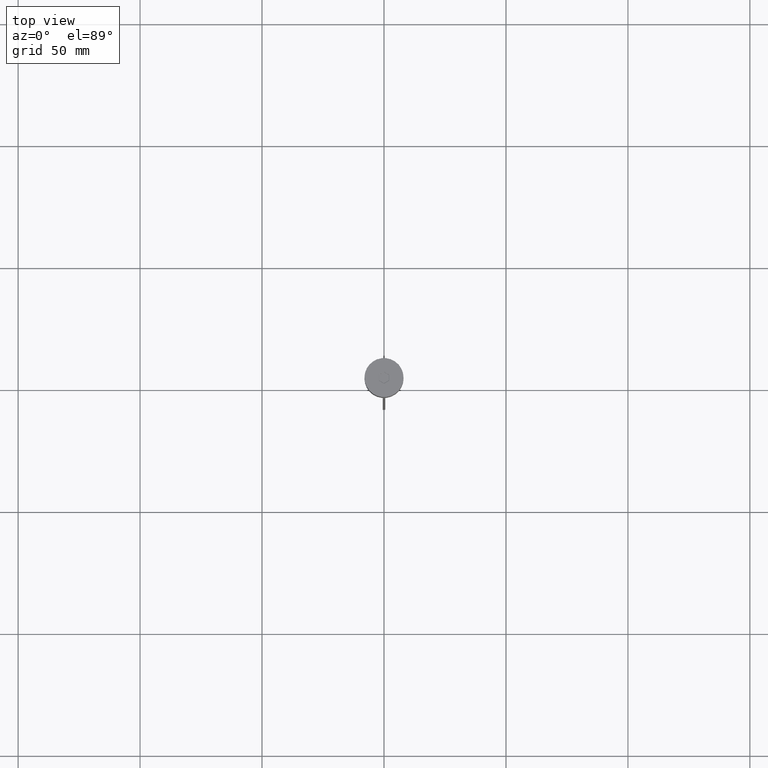
[diagram: clean part render]
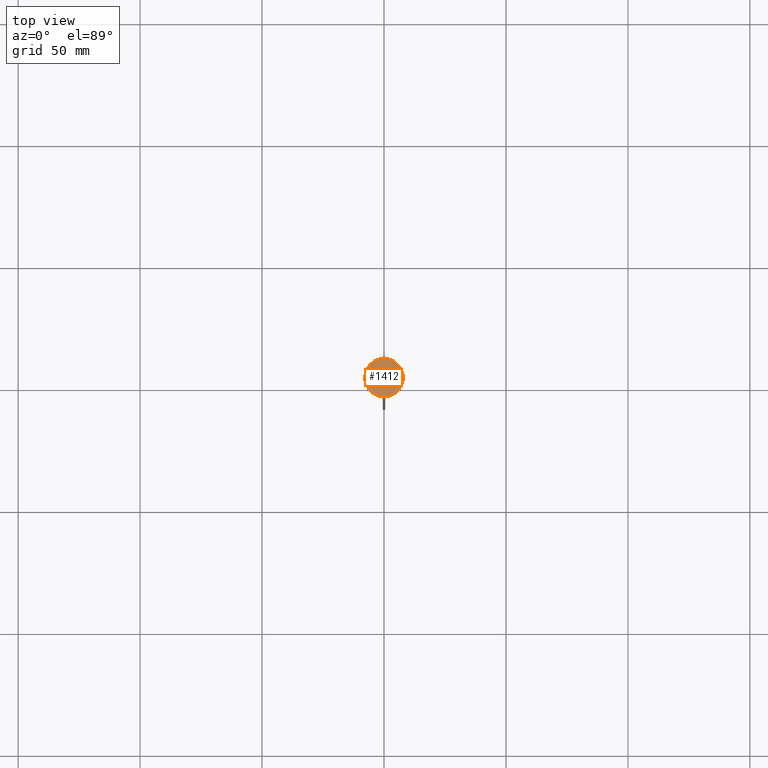
[diagram: same view with one face highlighted and labeled with its STEP entity id]
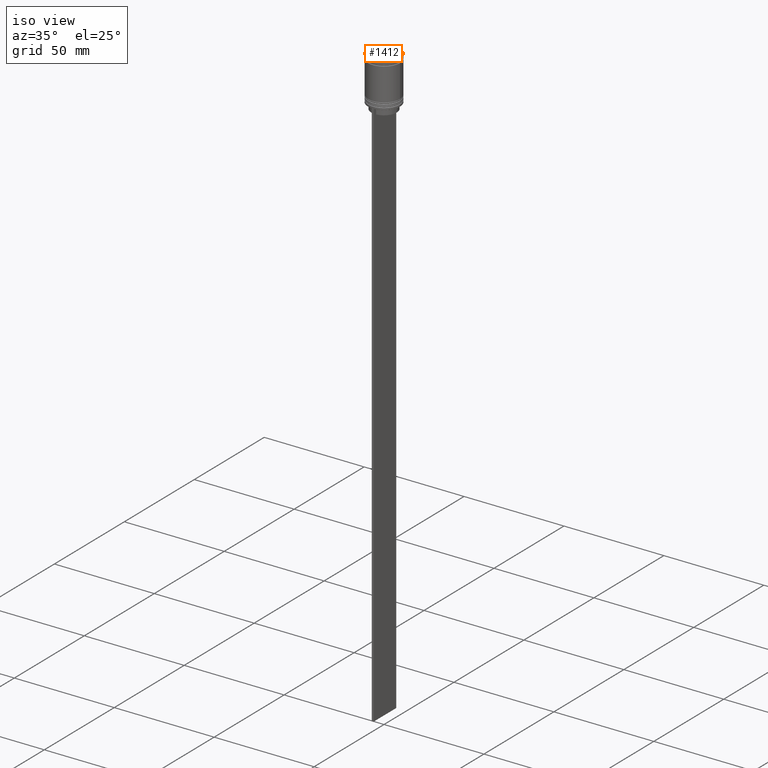
[diagram: same view with one face highlighted and labeled with its STEP entity id]
A machine part, top view. The second image highlights one B-rep face of the part: STEP entity #1412.
A second angle (iso view) of the same face is appended — the face is thin or edge-on in the first view.
In plain terms, the highlighted planar face has unit normal (0, -0, 1).
Its self-contained STEP definition (entity closure, byte-faithful):
#5 = EDGE_CURVE ( 'NONE', #1624, #1775, #1335, .T. ) ;
#14 = ORIENTED_EDGE ( 'NONE', *, *, #1951, .T. ) ;
#43 = EDGE_CURVE ( 'NONE', #1532, #1232, #1653, .T. ) ;
#64 = CARTESIAN_POINT ( 'NONE',  ( 2.049999999999991385, 1.241303078757680645, 0.000000000000000000 ) ) ;
#133 = FACE_BOUND ( 'NONE', #1577, .T. ) ;
#165 = LINE ( 'NONE', #503, #509 ) ;
#193 = CARTESIAN_POINT ( 'NONE',  ( 0.000000000000000000, 0.000000000000000000, 0.000000000000000000 ) ) ;
#232 = EDGE_CURVE ( 'NONE', #1006, #728, #1799, .T. ) ;
#238 = LINE ( 'NONE', #1040, #1160 ) ;
#290 = EDGE_CURVE ( 'NONE', #1396, #549, #165, .T. ) ;
#420 = CARTESIAN_POINT ( 'NONE',  ( -0.04999999999999179406, 2.396003617136931663, 0.000000000000000000 ) ) ;
#463 = DIRECTION ( 'NONE',  ( 0.000000000000000000, -0.000000000000000000, 1.000000000000000000 ) ) ;
#503 = CARTESIAN_POINT ( 'NONE',  ( 0.04999999999999210631, -2.396003617136932551, 0.000000000000000000 ) ) ;
#509 = VECTOR ( 'NONE', #1303, 999.9999999999998863 ) ;
#549 = VERTEX_POINT ( 'NONE', #786 ) ;
#560 = ORIENTED_EDGE ( 'NONE', *, *, #290, .T. ) ;
#623 = FACE_OUTER_BOUND ( 'NONE', #2080, .T. ) ;
#632 = DIRECTION ( 'NONE',  ( 1.000000000000000000, 0.000000000000000000, 0.000000000000000000 ) ) ;
#638 = DIRECTION ( 'NONE',  ( -0.000000000000000000, -0.000000000000000000, 1.000000000000000000 ) ) ;
#656 = ORIENTED_EDGE ( 'NONE', *, *, #1103, .T. ) ;
#689 = CARTESIAN_POINT ( 'NONE',  ( 7.899999999999997691, 0.000000000000000000, 0.000000000000000000 ) ) ;
#698 = DIRECTION ( 'NONE',  ( 0.8660254037844387076, 0.4999999999999998890, 0.000000000000000000 ) ) ;
#712 = VECTOR ( 'NONE', #1685, 1000.000000000000000 ) ;
#721 = ORIENTED_EDGE ( 'NONE', *, *, #5, .T. ) ;
#728 = VERTEX_POINT ( 'NONE', #689 ) ;
#731 = ORIENTED_EDGE ( 'NONE', *, *, #1352, .T. ) ;
#734 = LINE ( 'NONE', #420, #1669 ) ;
#759 = ORIENTED_EDGE ( 'NONE', *, *, #232, .T. ) ;
#786 = CARTESIAN_POINT ( 'NONE',  ( 4.687517206659946955E-16, -2.424871130596408797, 0.000000000000000000 ) ) ;
#858 = EDGE_CURVE ( 'NONE', #1232, #1624, #734, .T. ) ;
#886 = AXIS2_PLACEMENT_3D ( 'NONE', #193, #638, #1110 ) ;
#949 = CARTESIAN_POINT ( 'NONE',  ( 0.000000000000000000, 0.000000000000000000, 0.000000000000000000 ) ) ;
#992 = CARTESIAN_POINT ( 'NONE',  ( -2.019064530729228630E-16, 2.424871130596408353, 0.000000000000000000 ) ) ;
#1006 = VERTEX_POINT ( 'NONE', #1737 ) ;
#1040 = CARTESIAN_POINT ( 'NONE',  ( -2.049999999999991385, -1.241303078757681533, 0.000000000000000000 ) ) ;
#1073 = ORIENTED_EDGE ( 'NONE', *, *, #858, .T. ) ;
#1092 = CIRCLE ( 'NONE', #1765, 7.899999999999997691 ) ;
#1103 = EDGE_CURVE ( 'NONE', #728, #1006, #1092, .T. ) ;
#1110 = DIRECTION ( 'NONE',  ( 1.000000000000000000, 0.000000000000000000, 0.000000000000000000 ) ) ;
#1111 = CARTESIAN_POINT ( 'NONE',  ( 0.000000000000000000, 0.000000000000000000, 0.000000000000000000 ) ) ;
#1131 = VECTOR ( 'NONE', #1271, 1000.000000000000000 ) ;
#1160 = VECTOR ( 'NONE', #1359, 1000.000000000000114 ) ;
#1205 = DIRECTION ( 'NONE',  ( 0.8660254037844387076, -0.4999999999999998890, 0.000000000000000000 ) ) ;
#1232 = VERTEX_POINT ( 'NONE', #1632 ) ;
#1255 = CARTESIAN_POINT ( 'NONE',  ( -2.099999999999983213, -1.212435565298204843, 0.000000000000000000 ) ) ;
#1271 = DIRECTION ( 'NONE',  ( 0.000000000000000000, -1.000000000000000000, 0.000000000000000000 ) ) ;
#1300 = CARTESIAN_POINT ( 'NONE',  ( 2.099999999999983213, -1.154700538379251684, 0.000000000000000000 ) ) ;
#1303 = DIRECTION ( 'NONE',  ( -0.8660254037844385966, -0.5000000000000002220, 0.000000000000000000 ) ) ;
#1325 = CARTESIAN_POINT ( 'NONE',  ( 2.099999999999983213, 1.212435565298204176, 0.000000000000000000 ) ) ;
#1335 = LINE ( 'NONE', #64, #1557 ) ;
#1352 = EDGE_CURVE ( 'NONE', #549, #1532, #238, .T. ) ;
#1359 = DIRECTION ( 'NONE',  ( -0.8660254037844388186, 0.4999999999999997780, 0.000000000000000000 ) ) ;
#1396 = VERTEX_POINT ( 'NONE', #1663 ) ;
#1412 = ADVANCED_FACE ( 'NONE', ( #623, #133 ), #2023, .T. ) ;
#1486 = CARTESIAN_POINT ( 'NONE',  ( -2.099999999999983213, 1.154700538379251018, 0.000000000000000000 ) ) ;
#1531 = AXIS2_PLACEMENT_3D ( 'NONE', #1111, #463, #1744 ) ;
#1532 = VERTEX_POINT ( 'NONE', #1255 ) ;
#1557 = VECTOR ( 'NONE', #1205, 1000.000000000000000 ) ;
#1577 = EDGE_LOOP ( 'NONE', ( #560, #731, #1809, #1073, #721, #14 ) ) ;
#1585 = DIRECTION ( 'NONE',  ( -0.000000000000000000, -0.000000000000000000, 1.000000000000000000 ) ) ;
#1591 = LINE ( 'NONE', #1300, #1131 ) ;
#1624 = VERTEX_POINT ( 'NONE', #992 ) ;
#1632 = CARTESIAN_POINT ( 'NONE',  ( -2.099999999999983213, 1.212435565298204176, 0.000000000000000000 ) ) ;
#1653 = LINE ( 'NONE', #1486, #712 ) ;
#1663 = CARTESIAN_POINT ( 'NONE',  ( 2.099999999999983213, -1.212435565298204398, 0.000000000000000000 ) ) ;
#1669 = VECTOR ( 'NONE', #698, 1000.000000000000000 ) ;
#1685 = DIRECTION ( 'NONE',  ( 0.000000000000000000, 1.000000000000000000, 0.000000000000000000 ) ) ;
#1737 = CARTESIAN_POINT ( 'NONE',  ( -7.899999999999997691, 9.735942053221454928E-16, 0.000000000000000000 ) ) ;
#1744 = DIRECTION ( 'NONE',  ( 1.000000000000000000, 0.000000000000000000, 0.000000000000000000 ) ) ;
#1765 = AXIS2_PLACEMENT_3D ( 'NONE', #949, #1585, #632 ) ;
#1775 = VERTEX_POINT ( 'NONE', #1325 ) ;
#1799 = CIRCLE ( 'NONE', #886, 7.899999999999997691 ) ;
#1809 = ORIENTED_EDGE ( 'NONE', *, *, #43, .T. ) ;
#1951 = EDGE_CURVE ( 'NONE', #1775, #1396, #1591, .T. ) ;
#2023 = PLANE ( 'NONE',  #1531 ) ;
#2080 = EDGE_LOOP ( 'NONE', ( #656, #759 ) ) ;